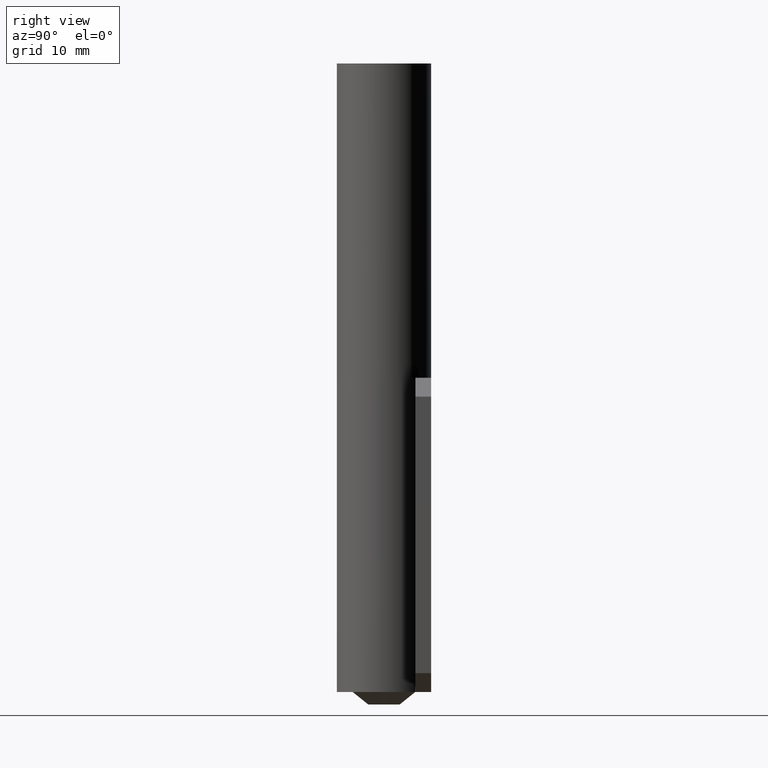
[diagram: clean part render]
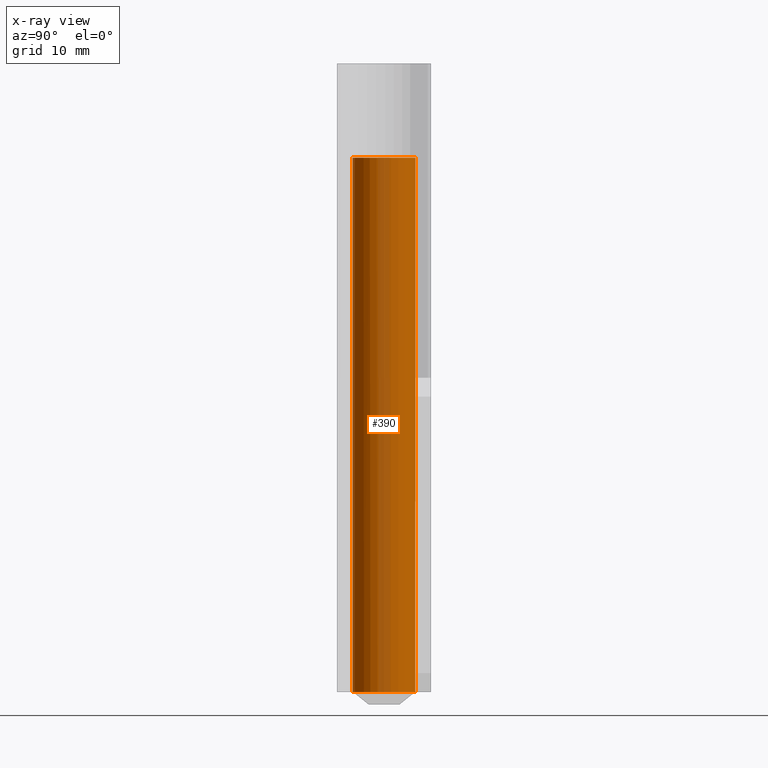
[diagram: x-ray — body ghosted, one internal face saturated and labeled with its STEP entity id]
A machine part, right view, then the same camera in x-ray: the body is ghosted and one INTERNAL B-rep face — a face not visible from any outside direction — is saturated and labeled: STEP entity #390.
In plain terms, the highlighted face is a freeform B-spline surface patch.
Its self-contained STEP definition (entity closure, byte-faithful):
#119=CARTESIAN_POINT('',(0.305242697684570,-4.990673992108704,84.999938000186006));
#120=VERTEX_POINT('',#119);
#141=CARTESIAN_POINT('',(0.570503323870676,4.967345967159173,84.999938000186006));
#142=VERTEX_POINT('',#141);
#156=CARTESIAN_POINT('',(-5.0,0.0,84.999938000186006));
#157=VERTEX_POINT('',#156);
#158=CARTESIAN_POINT('',(-5.0,0.0,84.999938000186006));
#159=CARTESIAN_POINT('',(-5.000000000000001,5.000000000000001,84.999938000186020));
#160=CARTESIAN_POINT('',(0.0,5.0,84.999938000186006));
#161=CARTESIAN_POINT('',(0.286186175297004,5.0,84.999938000186006));
#162=CARTESIAN_POINT('',(0.570503323870676,4.967345967159173,84.999938000186006));
#170=(BOUNDED_CURVE()B_SPLINE_CURVE(2,(#158,#159,#160,#161,#162),.UNSPECIFIED.,.F.,.U.)B_SPLINE_CURVE_WITH_KNOTS((3,2,3),(0.0,0.250000000000000,0.269767755888116),.UNSPECIFIED.)CURVE()GEOMETRIC_REPRESENTATION_ITEM()RATIONAL_B_SPLINE_CURVE((1.0,0.707106781186548,1.0,0.976840633396844,0.957343736437965))REPRESENTATION_ITEM(''));
#171=EDGE_CURVE('',#157,#142,#170,.T.);
#173=CARTESIAN_POINT('',(-2.925413919224987,-4.054867864828848,84.999938000182610));
#174=VERTEX_POINT('',#173);
#175=CARTESIAN_POINT('',(-2.925413919224988,-4.054867864828848,84.999938000182610));
#176=CARTESIAN_POINT('',(-4.999999999999999,-2.558142644731232,84.999938000186006));
#177=CARTESIAN_POINT('',(-5.0,0.0,84.999938000186006));
#185=(BOUNDED_CURVE()B_SPLINE_CURVE(2,(#175,#176,#177),.UNSPECIFIED.,.F.,.U.)B_SPLINE_CURVE_WITH_KNOTS((3,3),(0.850743050384720,1.0),.UNSPECIFIED.)CURVE()GEOMETRIC_REPRESENTATION_ITEM()RATIONAL_B_SPLINE_CURVE((0.859068214726108,0.825134606387613,1.0))REPRESENTATION_ITEM(''));
#186=EDGE_CURVE('',#174,#157,#185,.T.);
#226=CARTESIAN_POINT('',(0.305242697684570,-4.990673992108704,84.999938000186006));
#227=CARTESIAN_POINT('',(0.152763816513573,-5.000000000000001,84.999938000186020));
#228=CARTESIAN_POINT('',(0.0,-5.0,84.999938000186006));
#229=CARTESIAN_POINT('',(-1.615381893441116,-5.0,84.999938000186006));
#230=CARTESIAN_POINT('',(-2.925413919224987,-4.054867864828848,84.999938000182624));
#238=(BOUNDED_CURVE()B_SPLINE_CURVE(2,(#226,#227,#228,#229,#230),.UNSPECIFIED.,.F.,.U.)B_SPLINE_CURVE_WITH_KNOTS((3,2,3),(0.739332962240546,0.750000000000000,0.850743050384721),.UNSPECIFIED.)CURVE()GEOMETRIC_REPRESENTATION_ITEM()RATIONAL_B_SPLINE_CURVE((0.976072041670153,0.987502787901715,1.0,0.881972174798933,0.859068214726107))REPRESENTATION_ITEM(''));
#239=EDGE_CURVE('',#120,#174,#238,.T.);
#263=CARTESIAN_POINT('',(0.570503323848359,4.967345967161736,2.485200E-015));
#264=VERTEX_POINT('',#263);
#280=CARTESIAN_POINT('',(0.570503323870676,4.967345967159173,84.999938000186006));
#281=CARTESIAN_POINT('',(0.570503323848359,4.967345967161736,2.485200E-015));
#282=QUASI_UNIFORM_CURVE('',1,(#280,#281),.UNSPECIFIED.,.F.,.U.);
#283=EDGE_CURVE('',#142,#264,#282,.T.);
#287=CARTESIAN_POINT('',(0.348769088438834,-4.987630330404322,3.113462E-011));
#288=VERTEX_POINT('',#287);
#289=CARTESIAN_POINT('',(0.305242697684570,-4.990673992108704,84.999938000186006));
#290=CARTESIAN_POINT('',(0.348769088438834,-4.987630330404322,3.113462E-011));
#291=QUASI_UNIFORM_CURVE('',1,(#289,#290),.UNSPECIFIED.,.F.,.U.);
#292=EDGE_CURVE('',#120,#288,#291,.T.);
#310=CARTESIAN_POINT('',(0.422667906112319,-4.983491958689545,87.124936450190631));
#311=CARTESIAN_POINT('',(0.364242809468650,-4.987065390682821,87.124936450190702));
#312=CARTESIAN_POINT('',(-4.685431294435048,-5.295916689783620,87.124936450190674));
#313=CARTESIAN_POINT('',(-4.990673992109334,-0.305242697674285,87.124936450190674));
#314=CARTESIAN_POINT('',(-5.295916689783620,4.685431294435048,87.124936450190674));
#315=CARTESIAN_POINT('',(-0.305242697674285,4.990673992109334,87.124936450190674));
#316=CARTESIAN_POINT('',(0.133656090482733,5.017518191973888,87.124936450190674));
#317=CARTESIAN_POINT('',(0.610406387462546,4.962763071070302,87.124936450190674));
#318=CARTESIAN_POINT('',(0.650511779054439,4.958156937462392,87.124936450190674));
#319=CARTESIAN_POINT('',(0.422667906112319,-4.983491958689545,-2.178123411254773));
#320=CARTESIAN_POINT('',(0.364242809468650,-4.987065390682821,-2.178123411254774));
#321=CARTESIAN_POINT('',(-4.685431294435048,-5.295916689783620,-2.178123411254774));
#322=CARTESIAN_POINT('',(-4.990673992109334,-0.305242697674285,-2.178123411254774));
#323=CARTESIAN_POINT('',(-5.295916689783620,4.685431294435048,-2.178123411254774));
#324=CARTESIAN_POINT('',(-0.305242697674285,4.990673992109334,-2.178123411254774));
#325=CARTESIAN_POINT('',(0.133656090482733,5.017518191973888,-2.178123411254774));
#326=CARTESIAN_POINT('',(0.610406387462546,4.962763071070302,-2.178123411254774));
#327=CARTESIAN_POINT('',(0.650511779054439,4.958156937462392,-2.178123411254773));
#335=(BOUNDED_SURFACE()B_SPLINE_SURFACE(2,1,((#310,#319),(#311,#320),(#312,#321),(#313,#322),(#314,#323),(#315,#324),(#316,#325),(#317,#326),(#318,#327)),.UNSPECIFIED.,.F.,.F.,.U.)B_SPLINE_SURFACE_WITH_KNOTS((3,1,2,2,1,3),(2,2),(0.0,0.139185773135275,8.423457020597175,16.707728268059071,17.701840817754501,17.789909675773391),(0.0,89.303059861445462),.UNSPECIFIED.)GEOMETRIC_REPRESENTATION_ITEM()RATIONAL_B_SPLINE_SURFACE(((1.009841920402865,1.009841920402865),(1.004920960201432,1.004920960201432),(0.707106781186548,0.707106781186548),(1.0,1.0),(0.707106781186548,0.707106781186548),(1.0,1.0),(0.964852813742386,0.964852813742386),(0.935774536891371,0.935774536891371),(0.933408121596144,0.933408121596144)))REPRESENTATION_ITEM('')SURFACE());
#336=CARTESIAN_POINT('',(-0.392295479203382,4.984586668699309,6.226368E-011));
#337=VERTEX_POINT('',#336);
#338=CARTESIAN_POINT('',(-0.392295479203382,4.984586668699310,6.226368E-011));
#339=CARTESIAN_POINT('',(-0.196450535598988,4.999999999999999,0.0));
#340=CARTESIAN_POINT('',(0.0,5.0,0.0));
#341=CARTESIAN_POINT('',(0.286186175274470,4.999999999999999,0.0));
#342=CARTESIAN_POINT('',(0.570503323848359,4.967345967161738,2.485200E-015));
#350=(BOUNDED_CURVE()B_SPLINE_CURVE(2,(#338,#339,#340,#341,#342),.UNSPECIFIED.,.F.,.U.)B_SPLINE_CURVE_WITH_KNOTS((3,2,3),(0.236331300594383,0.250000000000000,0.269767755886596),.UNSPECIFIED.)CURVE()GEOMETRIC_REPRESENTATION_ITEM()RATIONAL_B_SPLINE_CURVE((0.969723356091712,0.983986122536382,1.0,0.976840633398626,0.957343736440964))REPRESENTATION_ITEM(''));
#351=EDGE_CURVE('',#337,#264,#350,.T.);
#352=ORIENTED_EDGE('',*,*,#351,.F.);
#353=CARTESIAN_POINT('',(-5.0,0.0,0.0));
#354=VERTEX_POINT('',#353);
#355=CARTESIAN_POINT('',(-5.0,0.0,0.0));
#356=CARTESIAN_POINT('',(-5.0,4.621952457252936,0.0));
#357=CARTESIAN_POINT('',(-0.392295479203382,4.984586668699309,6.226368E-011));
#365=(BOUNDED_CURVE()B_SPLINE_CURVE(2,(#355,#356,#357),.UNSPECIFIED.,.F.,.U.)B_SPLINE_CURVE_WITH_KNOTS((3,3),(0.0,0.236331300594383),.UNSPECIFIED.)CURVE()GEOMETRIC_REPRESENTATION_ITEM()RATIONAL_B_SPLINE_CURVE((1.0,0.723120658650166,0.969723356091712))REPRESENTATION_ITEM(''));
#366=EDGE_CURVE('',#354,#337,#365,.T.);
#367=ORIENTED_EDGE('',*,*,#366,.F.);
#368=CARTESIAN_POINT('',(0.348769088438834,-4.987630330404322,3.113462E-011));
#369=CARTESIAN_POINT('',(0.174590783272690,-4.999813171430160,3.062769E-011));
#370=CARTESIAN_POINT('',(-0.000012832442678,-4.999816487521715,3.008407E-011));
#371=CARTESIAN_POINT('',(-5.000006192161953,-4.999911447959336,1.451675E-011));
#372=CARTESIAN_POINT('',(-5.0,0.0,0.0));
#380=(BOUNDED_CURVE()B_SPLINE_CURVE(2,(#368,#369,#370,#371,#372),.UNSPECIFIED.,.F.,.U.)B_SPLINE_CURVE_WITH_KNOTS((3,2,3),(0.737829682987324,0.750000000000000,1.0),.UNSPECIFIED.)CURVE()GEOMETRIC_REPRESENTATION_ITEM()RATIONAL_B_SPLINE_CURVE((0.972871408688629,0.985741586704709,1.0,0.707106781186548,1.0))REPRESENTATION_ITEM(''));
#381=EDGE_CURVE('',#288,#354,#380,.T.);
#382=ORIENTED_EDGE('',*,*,#381,.F.);
#383=ORIENTED_EDGE('',*,*,#292,.F.);
#384=ORIENTED_EDGE('',*,*,#239,.T.);
#385=ORIENTED_EDGE('',*,*,#186,.T.);
#386=ORIENTED_EDGE('',*,*,#171,.T.);
#387=ORIENTED_EDGE('',*,*,#283,.T.);
#388=EDGE_LOOP('',(#352,#367,#382,#383,#384,#385,#386,#387));
#389=FACE_OUTER_BOUND('',#388,.T.);
#390=ADVANCED_FACE('',(#389),#335,.T.);